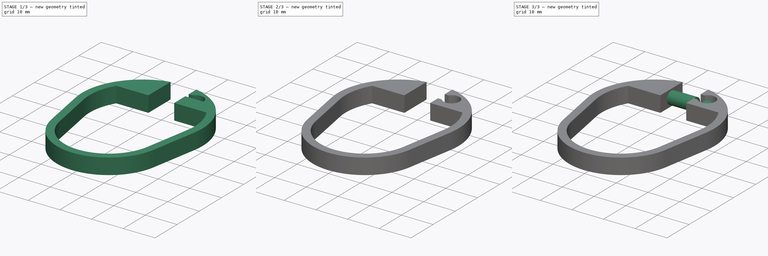
[diagram: build sequence overview — one tinted view per stage of 3, left to right]
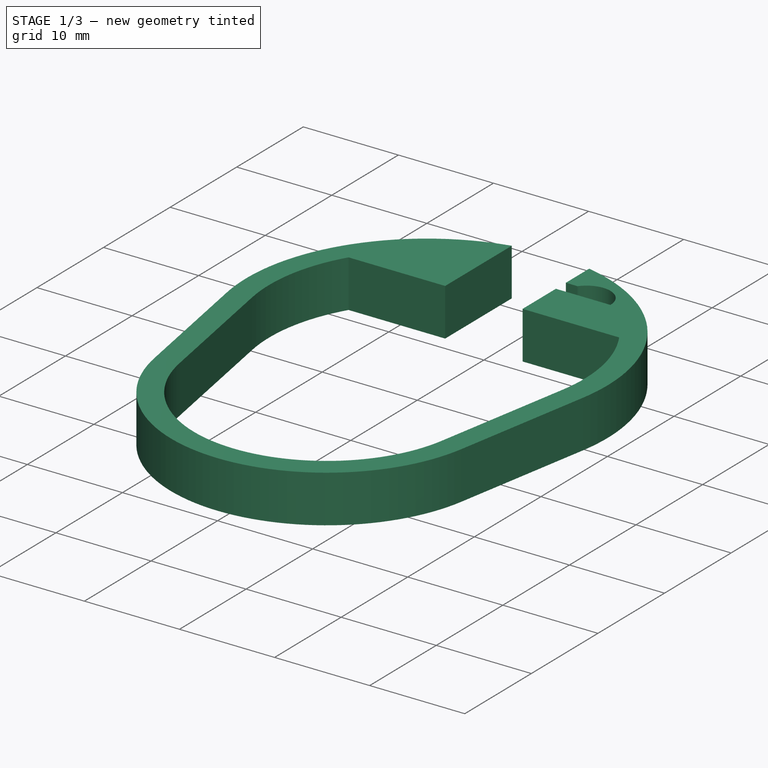
[diagram: stage 1 of 3 — iso view after this stage's code; geometry added in this stage tinted green]
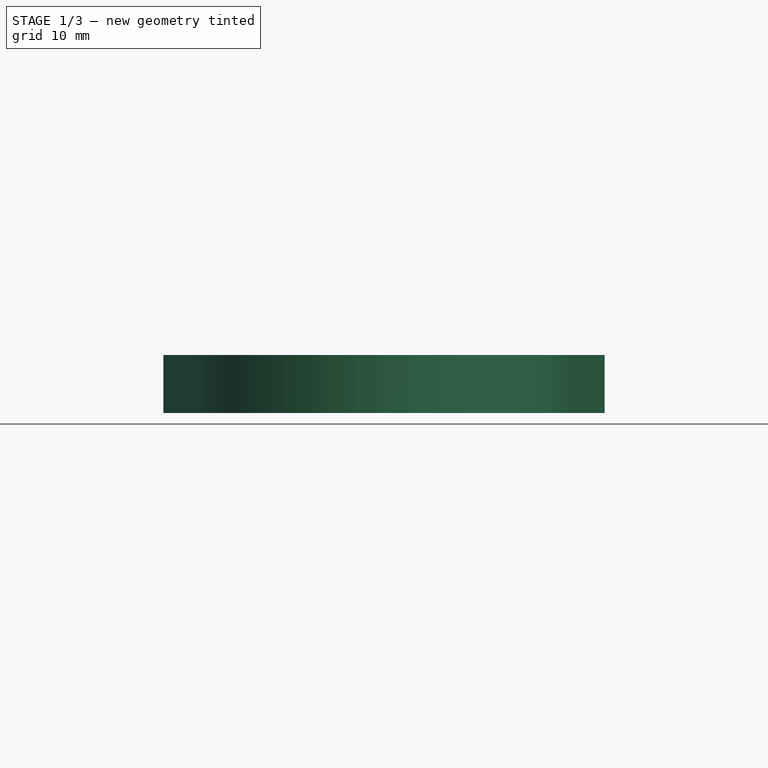
[diagram: stage 1 of 3 — front view after this stage's code; geometry added in this stage tinted green]
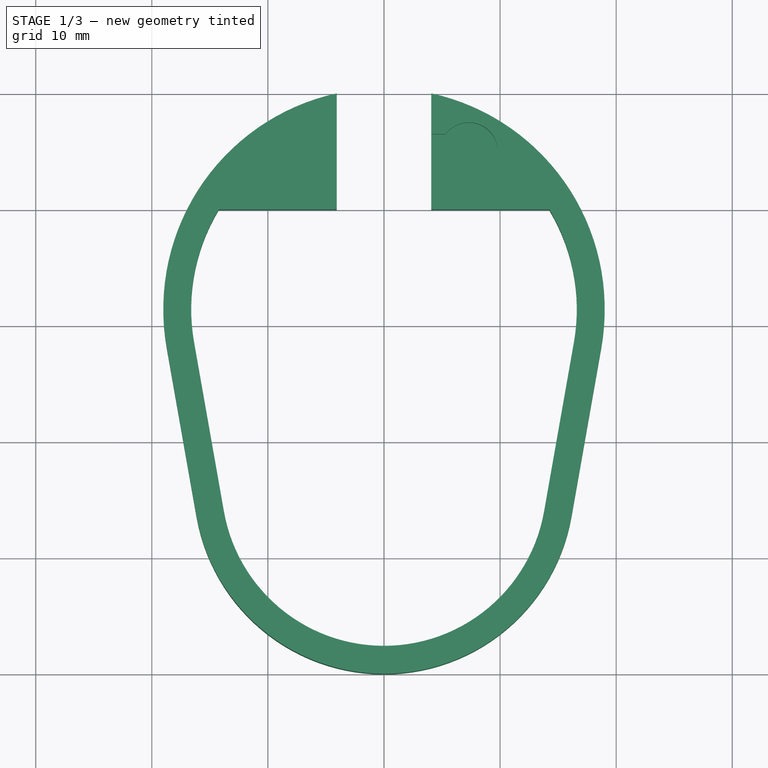
[diagram: stage 1 of 3 — top view after this stage's code; geometry added in this stage tinted green]
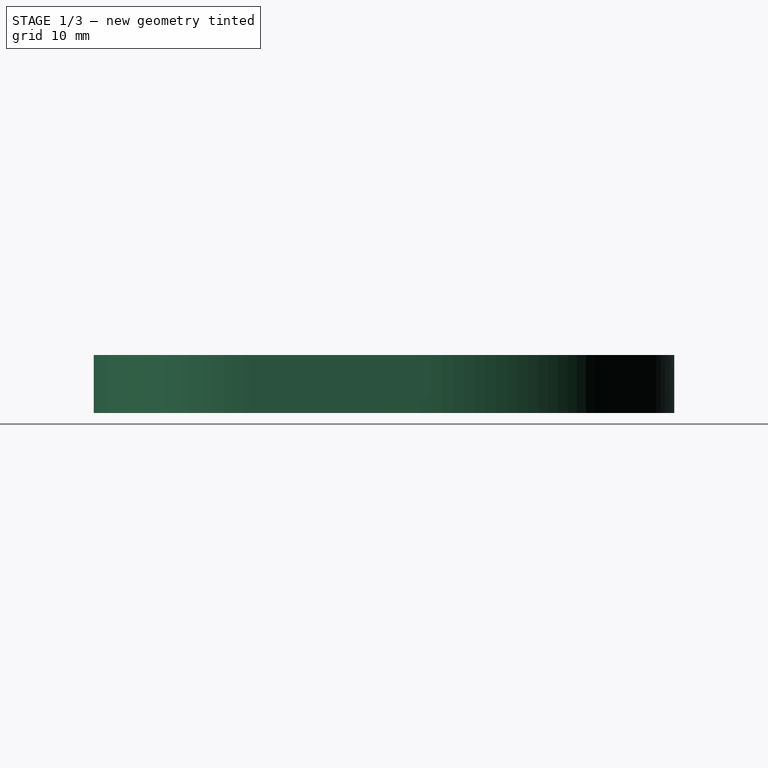
[diagram: stage 1 of 3 — right view after this stage's code; geometry added in this stage tinted green]
FCSTD DOCUMENT  (FreeCAD 0.22R37100 (Git))
Label: bathroom_curtain_holder
License: All rights reserved
LicenseURL: http://en.wikipedia.org/wiki/All_rights_reserved
objects: Sketcher::SketchObject×3, Part::Mirroring×1, Part::FeaturePython×1, PartDesign::SubShapeBinder×1, PartDesign::Pad×1, PartDesign::Pocket×1, PartDesign::Mirrored×1, PartDesign::Groove×1, PartDesign::Revolution×1, PartDesign::Body×1
note: 16 computed .brp shape members not serialized (recipe doc carries the construction recipe); baked Part::Feature solids carry a one-line shape summary decoded from their .brp

FEATURE [Sketcher::SketchObject] Sketch
  FullyConstrained = true
  sketch-geometry (10):
    g0: ArcOfCircle CenterX=0 CenterY=16.4 CenterZ=0 NormalX=0 NormalY=0 NormalZ=1 AngleXU=0 Radius=16.4 StartAngle=4.71239 EndAngle=6.10865
    g1: ArcOfCircle CenterX=0 CenterY=16.4 CenterZ=0 NormalX=0 NormalY=0 NormalZ=1 AngleXU=0 Radius=14 StartAngle=4.71239 EndAngle=6.10865
    g2: LineSegment StartX=16.1508 StartY=13.5522 StartZ=0 EndX=18.7213 EndY=28.1298 EndZ=0
    g3: LineSegment StartX=13.7873 StartY=13.9689 StartZ=0 EndX=16.3577 EndY=28.5466 EndZ=0
    g4: ArcOfCircle CenterX=0 CenterY=31.4309 CenterZ=0 NormalX=0 NormalY=0 NormalZ=1 AngleXU=0 Radius=16.6101 StartAngle=6.10865 EndAngle=6.82524
    g5: ArcOfCircle CenterX=0 CenterY=31.4309 CenterZ=0 NormalX=0 NormalY=0 NormalZ=1 AngleXU=0 Radius=19.0101 StartAngle=6.10865 EndAngle=7.63818
    g6: LineSegment StartX=4.0707 StartY=50 StartZ=0 EndX=4.0707 EndY=40 EndZ=0
    g7: LineSegment StartX=4.0707 StartY=40 StartZ=0 EndX=14.229 EndY=40 EndZ=0
    g8: GeomPoint X=-4.0707 Y=50 Z=0
    g9: GeomPoint X=4.0707 Y=45 Z=0
  constraints (25):
    c: PointOnObject(g0,g-2)
    c: Coincident(g0,g-1)
    c: Coincident(g1,g0)
    c: PointOnObject(g1,g-2)
    c: Parallel(g2,g3)
    c: Tangent(g2,g0) = -1.5708
    c: Tangent(g3,g1) = -1.5708
    c: PointOnObject(g4,g-2)
    c: Coincident(g5,g4)
    c: Coincident(g6,g5)
    c: Vertical(g6)
    c: Tangent(g5,g2) = -1.5708
    c: Tangent(g4,g3) = -1.5708
    c: Angle(g3) = 1.39626
    c: DistanceY(g1) = 2.4  'thickness'
    c: Coincident(g7,g6)
    c: Coincident(g7,g4)
    c: Horizontal(g7)
    c: Diameter(g1) = 28  'r'
    c: DistanceY(g5) = 50  'total_length'
    c: DistanceY(g6,g6) = 10
    c: Symmetric(g8,g5,g-2)
    c: DistanceX(g8,g5) = 8.1414  'gap'
    c: Symmetric(g6,g5,g9)
    c: DistanceY(g9) = 45  'mid'
FEATURE [Part::Mirroring] Part__Mirroring  label="Sketch (Mirror #1)"
  Base = (0,0,0)
  Normal = (1,0,0)
  Source = -> Sketch
FEATURE [Part::FeaturePython] Connect  # WARN: FeaturePython — macro-defined, semantics opaque (R4)
  Objects = -> [Sketch,Part__Mirroring]
  Tolerance = 0
FEATURE [PartDesign::SubShapeBinder] Binder
  BindCopyOnChange = 0
  BindMode = 0
  ClaimChildren = false
  Context = -> Body [Binder.]
  Fuse = false
  MakeFace = true
  OffsetFill = false
  OffsetIntersection = false
  OffsetJoinType = 0
  OffsetOpenResult = false
  PartialLoad = false
  Relative = true
  Support = -> [Connect]
  _Version = 2
FEATURE [PartDesign::Pad] Pad
  Direction = (0,0,1)
  Length = 5
  Length2 = 10
  Profile = -> Binder
  Suppressed = false
  Type = 0
FEATURE [Sketcher::SketchObject] Sketch001
  AttachmentOffset = pos=(-4.0707,45,2.5) rot=(0,0,1;0rad)
  AttachmentSupport = -> [XY_Plane]
  FullyConstrained = true
  MapMode = 5
  Placement = pos=(-4.0707,45,2.5) rot=(0,0,1;0rad)
  expr: .AttachmentOffset.Base.x = -<<Sketch>>.Constraints.gap / 2
  expr: .AttachmentOffset.Base.y = <<Sketch>>.Constraints.mid
  expr: .AttachmentOffset.Base.z = <<Pad>>.Length / 2
  expr: Constraints[17] = <<Sketch>>.Constraints.gap - 0.5 mm
  sketch-geometry (6):
    g0: LineSegment StartX=0 StartY=0 StartZ=0 EndX=0 EndY=2 EndZ=0
    g1: LineSegment StartX=0 StartY=2 StartZ=0 EndX=7.6414 EndY=2 EndZ=0
    g2: LineSegment StartX=7.6414 StartY=2 StartZ=0 EndX=7.6414 EndY=1 EndZ=0
    g3: LineSegment StartX=7.6414 StartY=1 StartZ=0 EndX=9.6414 EndY=1 EndZ=0
    g4: ArcOfCircle CenterX=11.3735 CenterY=0 CenterZ=0 NormalX=0 NormalY=0 NormalZ=1 AngleXU=0 Radius=2 StartAngle=0 EndAngle=2.61799
    g5: LineSegment StartX=0 StartY=0 StartZ=0 EndX=13.3735 EndY=0 EndZ=0
  constraints (18):
    c: Coincident(g-1,g0)
    c: PointOnObject(g0,g-2)
    c: Coincident(g0,g1)
    c: Horizontal(g1)
    c: Coincident(g1,g2)
    c: Vertical(g2)
    c: Coincident(g2,g3)
    c: Horizontal(g3)
    c: PointOnObject(g4,g-1)
    c: Coincident(g4,g3)
    c: PointOnObject(g4,g-1)
    c: DistanceY(g0,g0) = 2
    c: DistanceY(g2) = 1
    c: Tangent(g4,g1)
    c: Coincident(g5,g0)
    c: Coincident(g5,g4)
    c: DistanceX(g3,g3) = 2
    c: DistanceX(g1,g1) = 7.6414
FEATURE [Sketcher::SketchObject] Sketch002
  AttachmentOffset = pos=(-4.0707,45,2.5) rot=(0,0,1;0rad)
  AttachmentSupport = -> [XY_Plane]
  ExternalGeometry = -> [Sketch001]
  FullyConstrained = true
  MapMode = 5
  Placement = pos=(-4.0707,45,2.5) rot=(0,0,1;0rad)
  expr: AttachmentOffset = <<Sketch001>>.AttachmentOffset
  sketch-geometry (6):
    g0: ArcOfCircle CenterX=11.3735 CenterY=0 CenterZ=0 NormalX=0 NormalY=0 NormalZ=1 AngleXU=0 Radius=2.5 StartAngle=0 EndAngle=2.49809
    g1: LineSegment StartX=9.37345 StartY=1.5 StartZ=0 EndX=7.6414 EndY=1.5 EndZ=0
    g2: LineSegment StartX=7.6414 StartY=1.5 StartZ=0 EndX=7.6414 EndY=1 EndZ=0
    g3: LineSegment StartX=7.6414 StartY=1 StartZ=0 EndX=7.6414 EndY=0 EndZ=0
    g4: LineSegment StartX=7.6414 StartY=0 StartZ=0 EndX=13.3735 EndY=0 EndZ=0
    g5: LineSegment StartX=13.3735 StartY=0 StartZ=0 EndX=13.8735 EndY=0 EndZ=0
  constraints (16):
    c: Coincident(g0,g-3)
    c: PointOnObject(g0,g-1)
    c: Coincident(g1,g0)
    c: Horizontal(g1)
    c: Coincident(g2,g1)
    c: PointOnObject(g3,g-1)
    c: Coincident(g4,g3)
    c: Coincident(g5,g0)
    c: Coincident(g2,g3)
    c: Vertical(g2)
    c: Vertical(g3)
    c: Coincident(g4,g5)
    c: Coincident(g4,g-3)
    c: Coincident(g2,g-4)
    c: Equal(g2,g5)
    c: DistanceY(g2,g2) = 0.5
FEATURE [PartDesign::Pocket] Pocket
  BaseFeature = -> Pad
  Direction = (0,0,-1)
  Length = 5
  Length2 = 5
  Profile = -> Sketch002
  ReferenceAxis = -> Sketch002 [N_Axis]
  Reversed = true
  Suppressed = false
  Type = 1
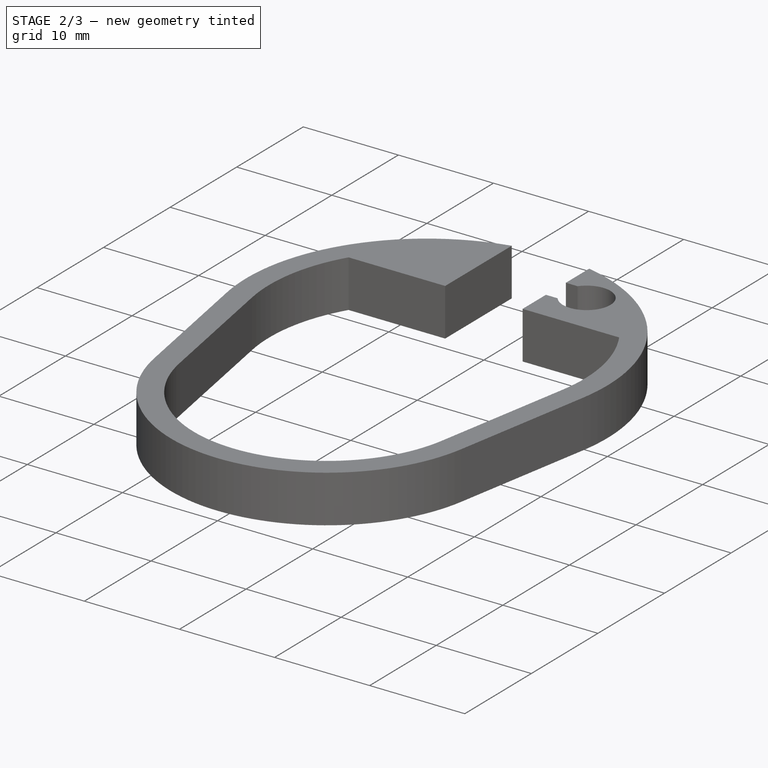
[diagram: stage 2 of 3 — iso view after this stage's code; geometry added in this stage tinted green]
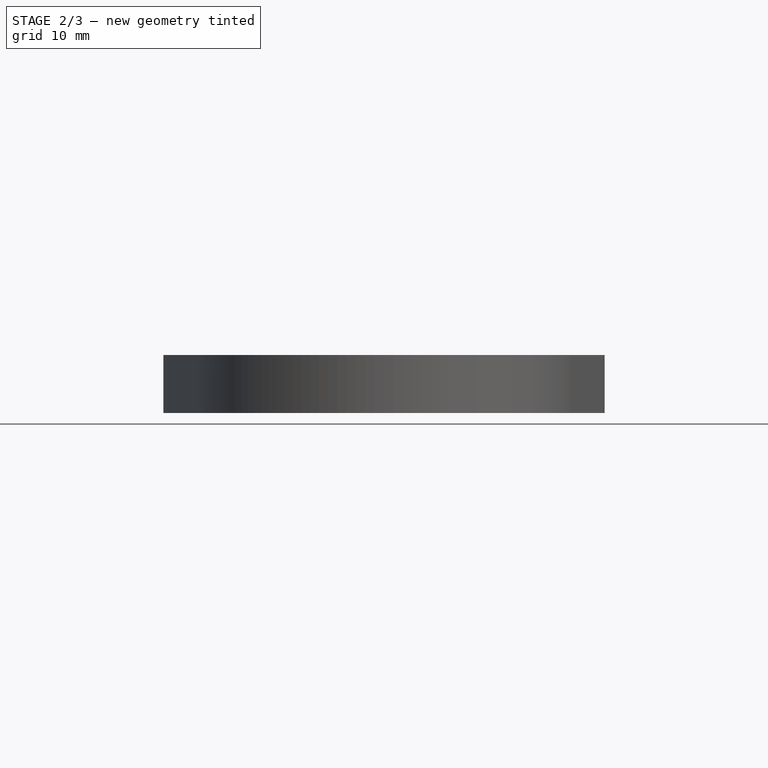
[diagram: stage 2 of 3 — front view after this stage's code; geometry added in this stage tinted green]
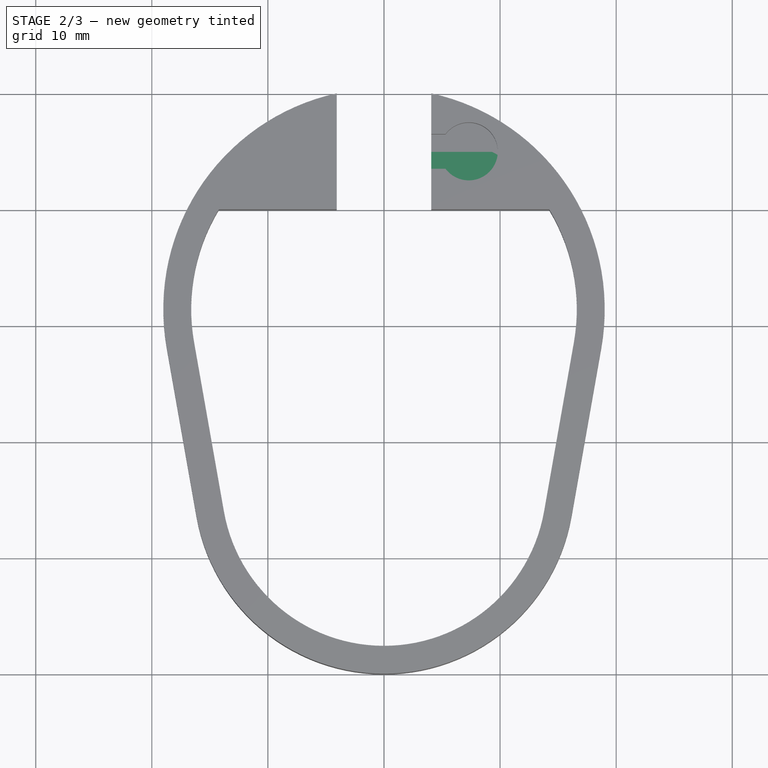
[diagram: stage 2 of 3 — top view after this stage's code; geometry added in this stage tinted green]
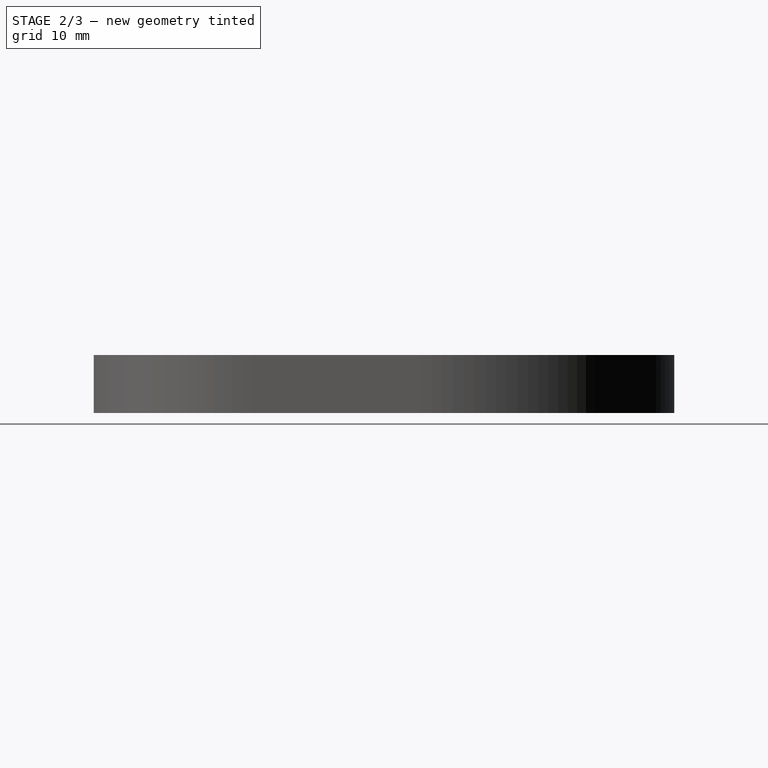
[diagram: stage 2 of 3 — right view after this stage's code; geometry added in this stage tinted green]
FEATURE [PartDesign::Mirrored] Mirrored
  BaseFeature = -> Pocket
  MirrorPlane = -> Sketch002 [H_Axis]
  Originals = -> [Pocket]
  Suppressed = false
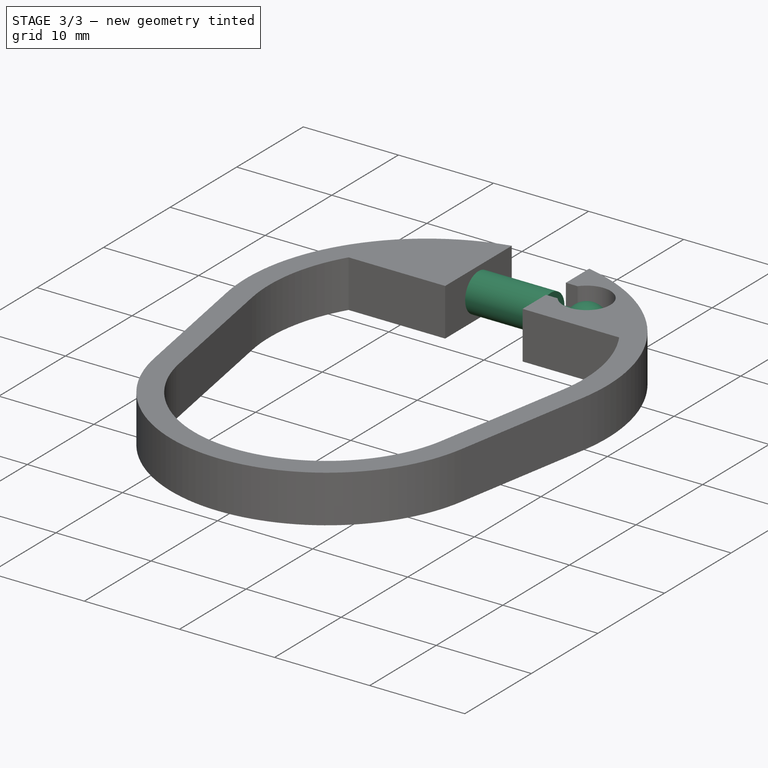
[diagram: stage 3 of 3 — iso view after this stage's code; geometry added in this stage tinted green]
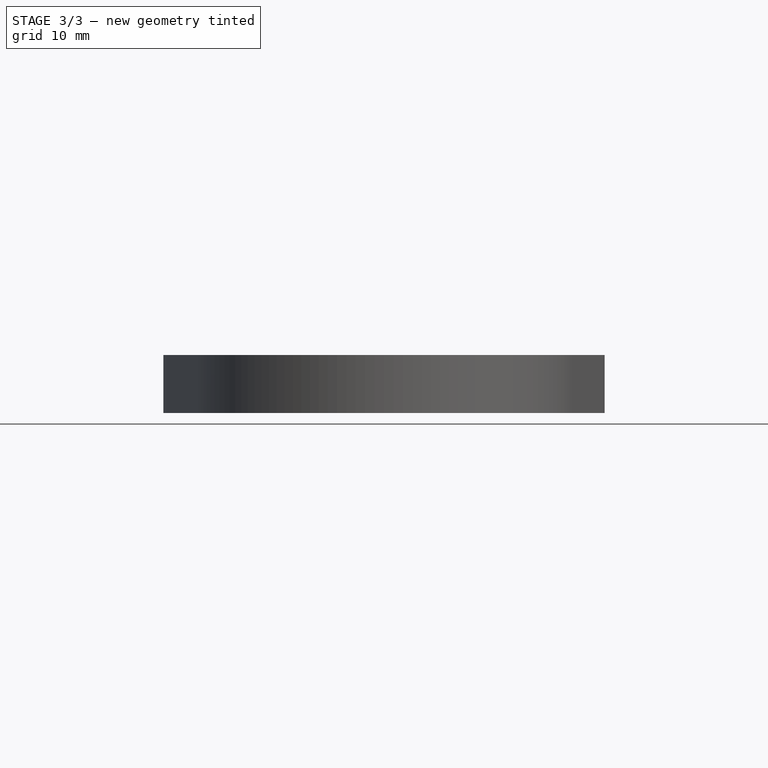
[diagram: stage 3 of 3 — front view after this stage's code; geometry added in this stage tinted green]
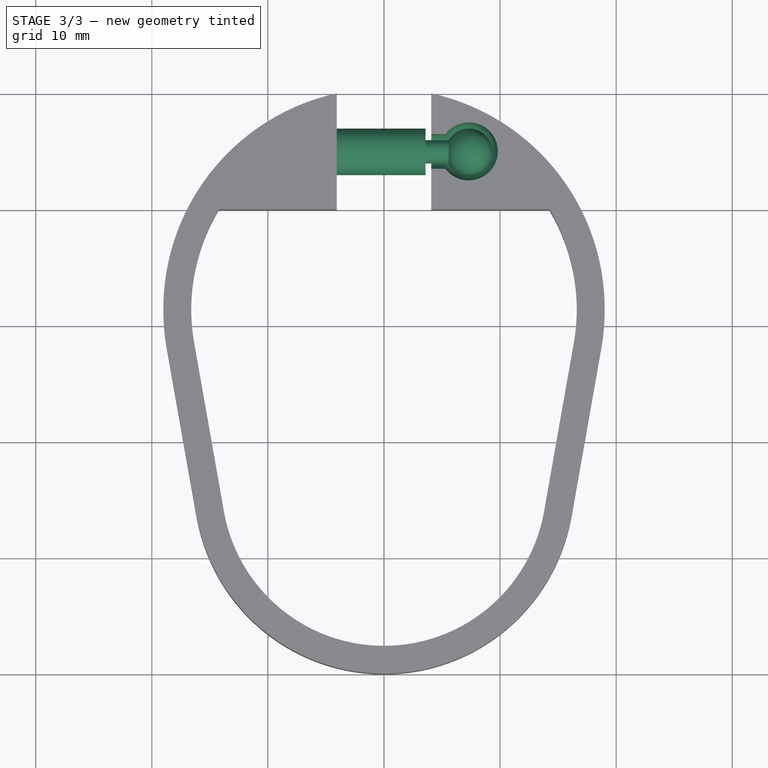
[diagram: stage 3 of 3 — top view after this stage's code; geometry added in this stage tinted green]
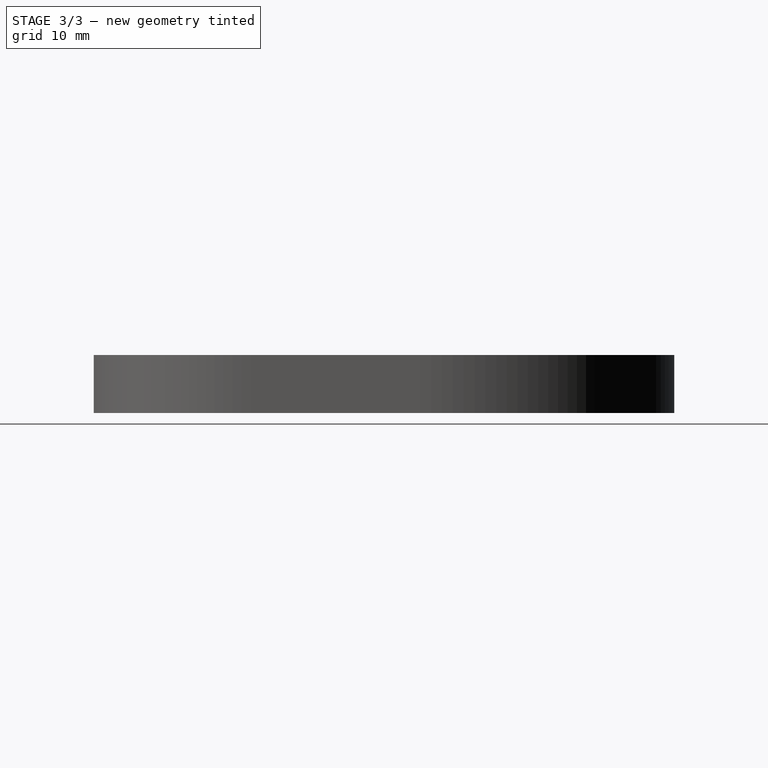
[diagram: stage 3 of 3 — right view after this stage's code; geometry added in this stage tinted green]
FEATURE [PartDesign::Groove] Groove
  Angle = 360
  Angle2 = 60
  Axis = (1,0,0)
  Base = (-4.0707,45,2.5)
  BaseFeature = -> Mirrored
  Profile = -> Sketch002
  ReferenceAxis = -> Sketch002 [H_Axis]
  Reversed = true
  Suppressed = false
  Type = 0
FEATURE [PartDesign::Revolution] Revolution
  Angle = 360
  Angle2 = 60
  Axis = (1,0,0)
  Base = (-4.0707,45,2.5)
  BaseFeature = -> Groove
  Profile = -> Sketch001
  ReferenceAxis = -> Sketch001 [H_Axis]
  Suppressed = false
  Type = 0
FEATURE [PartDesign::Body] Body
  Group = -> [Binder,Pad,Sketch001,Sketch002,Pocket,Mirrored,Groove,Revolution]
  Origin = -> Origin
  Tip = -> Revolution
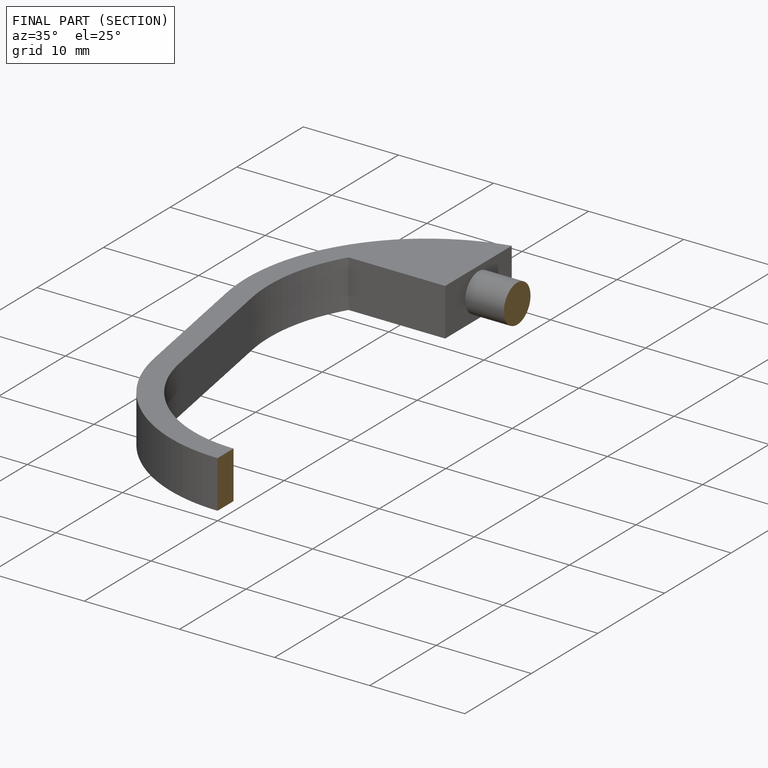
[diagram: finished part — half-section view (interior)]
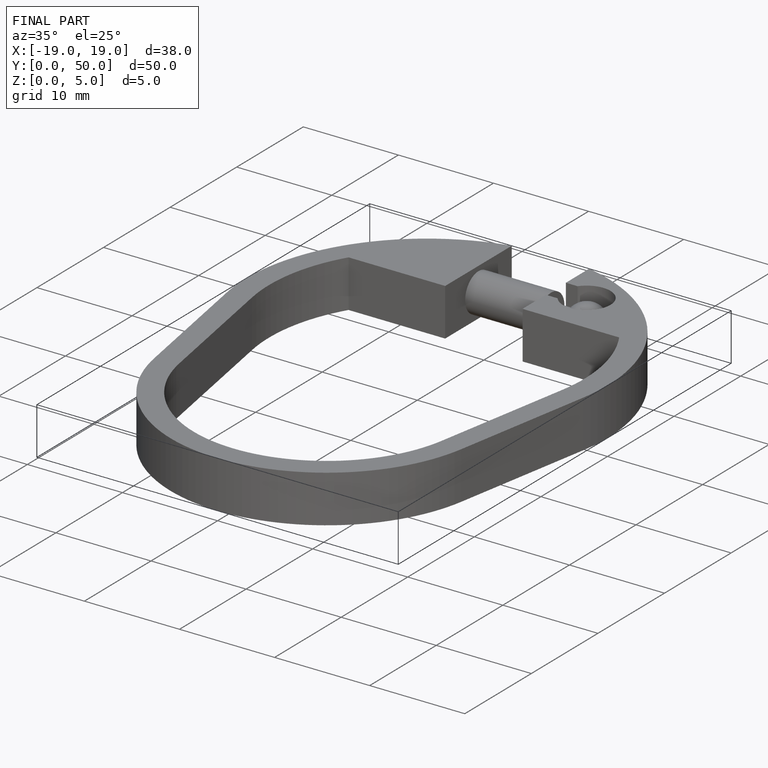
[diagram: finished part — iso view with bounding-box wireframe]
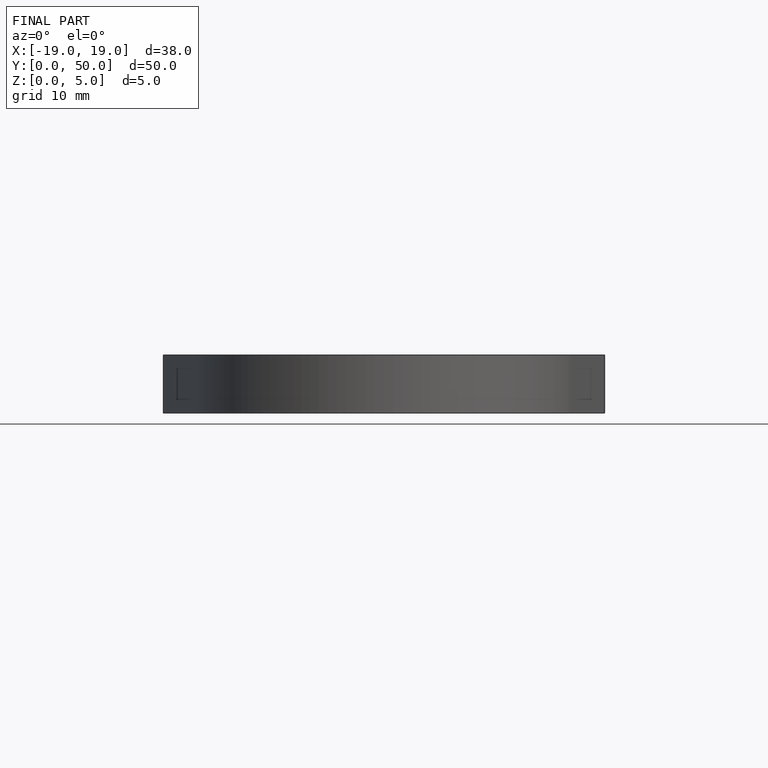
[diagram: finished part — front view with bounding-box wireframe]
